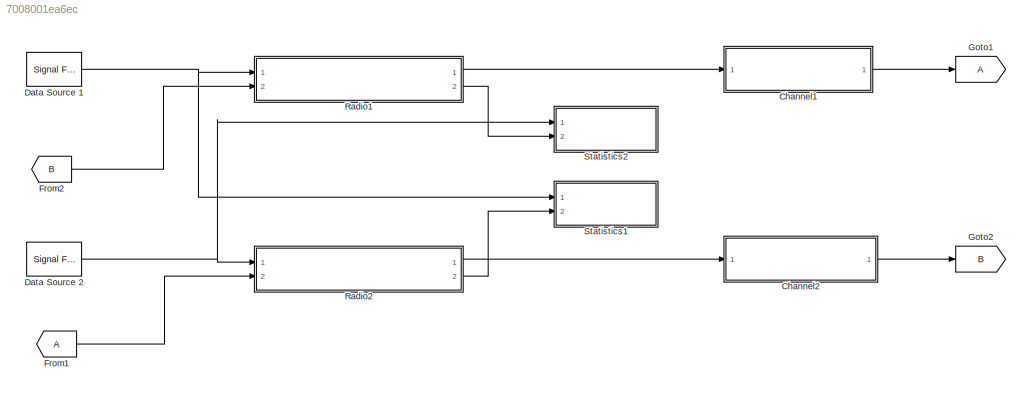
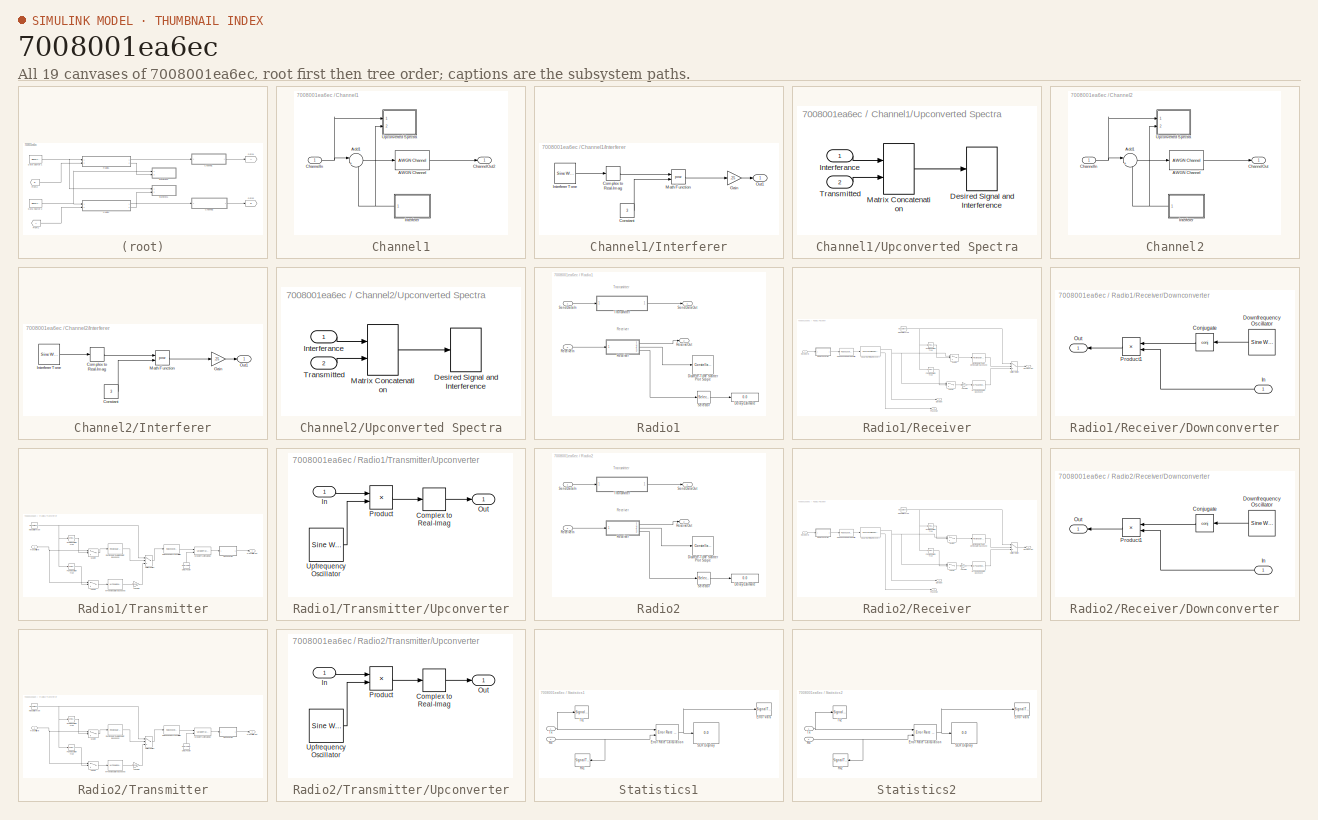
[diagram: thumbnail index - all 19 canvases of the model, root first then tree order]
MODEL slx_7008001ea6ec
KIND model
WORKSPACE source: MAT-file member
WORKSPACE MCOS: class17 (value not decoded)
WORKSPACE MCOS: class17 (value not decoded)
BLOCK [SubSystem] Channel1
  FunctionWithSeparateData = off
  MaskHideContents = off
  MinAlgLoopOccurrences = off
  Opaque = off
  Ports = [1, 1]
  PropExecContextOutsideSubsystem = off
  RTWFcnNameOpts = Use subsystem name
  RTWFileNameOpts = Use function name
  RTWSystemCode = Reusable function
  RequestExecContextInheritance = off
  TreatAsAtomicUnit = on
BLOCK [Reference] Channel1/AWGN Channel  REF=commchan3/AWGN
Channel
  EbNodB = 10
  EsNodB = 10
  InputProcessing = Columns as channels (frame based)
  Ports = [1, 1]
  Ps = InputSignalPower
  SNRdB = SNR
  SourceBlock = commchan3/AWGN\nChannel
  SourceType = AWGN Channel
  Tsym = 1
  UserDataPersistent = on
  bitsPerSym = 1
  noiseMode = Signal to noise ratio  (SNR)
  seed = 67
  variance = 1
BLOCK [Sum] Channel1/Add1
  IconShape = round
  InputSameDT = off
  Inputs = |++
  OutDataTypeStr = Inherit: Inherit via internal rule
  Ports = [2, 1]
  SaturateOnIntegerOverflow = off
BLOCK [Inport] Channel1/ChannelIn
  IconDisplay = Port number
BLOCK [Outport] Channel1/ChannelOut2
  IconDisplay = Port number
BLOCK [SubSystem] Channel1/Interferer
  FunctionWithSeparateData = off
  MaskHideContents = off
  MinAlgLoopOccurrences = off
  Opaque = off
  Ports = [0, 1]
  PropExecContextOutsideSubsystem = off
  RTWSystemCode = Auto
  RequestExecContextInheritance = off
BLOCK [ComplexToRealImag] Channel1/Interferer/Complex to Real-Imag
  Output = Real
  Ports = [1, 1]
BLOCK [Constant] Channel1/Interferer/Constant
  Value = 3
BLOCK [Gain] Channel1/Interferer/Gain
  Gain = .25
  OutDataTypeStr = Inherit: Inherit via internal rule
  ParamDataTypeStr = Inherit: Inherit via internal rule
  SaturateOnIntegerOverflow = off
BLOCK [Reference] Channel1/Interferer/Interferer Tone   REF=dspsrcs4/Sine Wave
  Amplitude = 1
  CompMethod = Trigonometric fcn
  Frequency = InterferanceFrequency
  LastOutDataTypeStr = double
  OutComplex = Complex
  OutDataTypeStr = double
  Phase = 0
  Ports = [0, 1]
  ResetState = Restart at time zero
  SampleMode = Discrete
  SampleTime = SampleTime/8
  SamplesPerFrame = SamplesPerFrame * 8
  SourceBlock = dspsrcs4/Sine Wave
  SourceType = Sine Wave
  TableSize = Speed
  additionalParams = off
  allowOverrides = on
  dataType = double
  fracBitsMode = Best precision
  numFracBits = 15
  udDataType = sfix(16)
  wordLen = 16
BLOCK [Math] Channel1/Interferer/Math Function
  Operator = pow
  Ports = [2, 1]
BLOCK [Outport] Channel1/Interferer/Out1
  IconDisplay = Port number
BLOCK [SubSystem] Channel1/Upconverted Spectra
  FunctionWithSeparateData = off
  MaskHideContents = off
  MinAlgLoopOccurrences = off
  Opaque = off
  Ports = [2]
  PropExecContextOutsideSubsystem = off
  RTWSystemCode = Auto
  RequestExecContextInheritance = off
BLOCK [SpectrumAnalyzer] Channel1/Upconverted Spectra/Desired Signal and Interference
  CloseFcn = scopeextensions.ScopeBlock.callback(gcbh, 'onBlockClose');
  CopyFcn = scopeextensions.ScopeBlock.onCoreBlockCopy(gcbh);
  DeleteFcn = scopeextensions.ScopeBlock.callback(gcbh, 'onBlockDelete');
  DestroyFcn = scopeextensions.ScopeBlock.onBlockDestroy(gcbh)
  NameChangeFcn = scopeextensions.ScopeBlock.callback(gcbh, 'onBlockRename');
  Ports = [1]
  PreDeleteFcn = scopeextensions.ScopeBlock.callback(gcbh, 'onBlockPreDelete');
  PreSaveFcn = scopeextensions.ScopeBlock.callback(gcbh, 'onModelSave');
BLOCK [Inport] Channel1/Upconverted Spectra/Interferance
  IconDisplay = Port number
BLOCK [Concatenate] Channel1/Upconverted Spectra/Matrix Concatenation
  ConcatenateDimension = 2
  Mode = Multidimensional array
  Ports = [2, 1]
BLOCK [Inport] Channel1/Upconverted Spectra/Transmitted
  IconDisplay = Port number
  Port = 2
BLOCK [SubSystem] Channel2
  FunctionWithSeparateData = off
  MaskHideContents = off
  MinAlgLoopOccurrences = off
  Opaque = off
  Ports = [1, 1]
  PropExecContextOutsideSubsystem = off
  RTWFcnNameOpts = Use subsystem name
  RTWFileNameOpts = Use function name
  RTWSystemCode = Reusable function
  RequestExecContextInheritance = off
  TreatAsAtomicUnit = on
BLOCK [Reference] Channel2/AWGN Channel  REF=commchan3/AWGN
Channel
  EbNodB = 10
  EsNodB = 10
  InputProcessing = Columns as channels (frame based)
  Ports = [1, 1]
  Ps = InputSignalPower
  SNRdB = SNR
  SourceBlock = commchan3/AWGN\nChannel
  SourceType = AWGN Channel
  Tsym = 1
  UserDataPersistent = on
  bitsPerSym = 1
  noiseMode = Signal to noise ratio  (SNR)
  seed = 67
  variance = 1
BLOCK [Sum] Channel2/Add1
  IconShape = round
  InputSameDT = off
  Inputs = |++
  OutDataTypeStr = Inherit: Inherit via internal rule
  Ports = [2, 1]
  SaturateOnIntegerOverflow = off
BLOCK [Inport] Channel2/ChannelIn
  IconDisplay = Port number
BLOCK [Outport] Channel2/ChannelOut
  IconDisplay = Port number
BLOCK [SubSystem] Channel2/Interferer
  FunctionWithSeparateData = off
  MaskHideContents = off
  MinAlgLoopOccurrences = off
  Opaque = off
  Ports = [0, 1]
  PropExecContextOutsideSubsystem = off
  RTWSystemCode = Auto
  RequestExecContextInheritance = off
BLOCK [ComplexToRealImag] Channel2/Interferer/Complex to Real-Imag
  Output = Real
  Ports = [1, 1]
BLOCK [Constant] Channel2/Interferer/Constant
  Value = 3
BLOCK [Gain] Channel2/Interferer/Gain
  Gain = .25
  OutDataTypeStr = Inherit: Inherit via internal rule
  ParamDataTypeStr = Inherit: Inherit via internal rule
  SaturateOnIntegerOverflow = off
BLOCK [Reference] Channel2/Interferer/Interferer Tone   REF=dspsrcs4/Sine Wave
  Amplitude = 1
  CompMethod = Trigonometric fcn
  Frequency = InterferanceFrequency
  LastOutDataTypeStr = double
  OutComplex = Complex
  OutDataTypeStr = double
  Phase = 0
  Ports = [0, 1]
  ResetState = Restart at time zero
  SampleMode = Discrete
  SampleTime = SampleTime/8
  SamplesPerFrame = SamplesPerFrame * 8
  SourceBlock = dspsrcs4/Sine Wave
  SourceType = Sine Wave
  TableSize = Speed
  additionalParams = off
  allowOverrides = on
  dataType = double
  fracBitsMode = Best precision
  numFracBits = 15
  udDataType = sfix(16)
  wordLen = 16
BLOCK [Math] Channel2/Interferer/Math Function
  Operator = pow
  Ports = [2, 1]
BLOCK [Outport] Channel2/Interferer/Out1
  IconDisplay = Port number
BLOCK [SubSystem] Channel2/Upconverted Spectra
  FunctionWithSeparateData = off
  MaskHideContents = off
  MinAlgLoopOccurrences = off
  Opaque = off
  Ports = [2]
  PropExecContextOutsideSubsystem = off
  RTWSystemCode = Auto
  RequestExecContextInheritance = off
BLOCK [SpectrumAnalyzer] Channel2/Upconverted Spectra/Desired Signal and Interference
  CloseFcn = scopeextensions.ScopeBlock.callback(gcbh, 'onBlockClose');
  CopyFcn = scopeextensions.ScopeBlock.onCoreBlockCopy(gcbh);
  DeleteFcn = scopeextensions.ScopeBlock.callback(gcbh, 'onBlockDelete');
  DestroyFcn = scopeextensions.ScopeBlock.onBlockDestroy(gcbh)
  NameChangeFcn = scopeextensions.ScopeBlock.callback(gcbh, 'onBlockRename');
  Ports = [1]
  PreDeleteFcn = scopeextensions.ScopeBlock.callback(gcbh, 'onBlockPreDelete');
  PreSaveFcn = scopeextensions.ScopeBlock.callback(gcbh, 'onModelSave');
BLOCK [Inport] Channel2/Upconverted Spectra/Interferance
  IconDisplay = Port number
BLOCK [Concatenate] Channel2/Upconverted Spectra/Matrix Concatenation
  ConcatenateDimension = 2
  Mode = Multidimensional array
  Ports = [2, 1]
BLOCK [Inport] Channel2/Upconverted Spectra/Transmitted
  IconDisplay = Port number
  Port = 2
BLOCK [Reference] Data Source 1  REF=dspsrcs4/Signal From
Workspace
  OutputAfterFinalValue = Cyclic repetition
  Ports = [0, 1]
  SourceBlock = dspsrcs4/Signal From\nWorkspace
  SourceType = Signal From Workspace
  Ts = SampleTime
  X = data1
  ignoreOrWarnInputAndFrameLengths = on
  nsamps = SamplesPerFrame
BLOCK [Reference] Data Source 2  REF=dspsrcs4/Signal From
Workspace
  OutputAfterFinalValue = Cyclic repetition
  Ports = [0, 1]
  SourceBlock = dspsrcs4/Signal From\nWorkspace
  SourceType = Signal From Workspace
  Ts = SampleTime
  X = data2
  ignoreOrWarnInputAndFrameLengths = on
  nsamps = SamplesPerFrame
BLOCK [From] From1
BLOCK [From] From2
  GotoTag = B
BLOCK [Goto] Goto1
BLOCK [Goto] Goto2
  GotoTag = B
BLOCK [SubSystem] Radio1
  FunctionWithSeparateData = off
  MaskHideContents = off
  MinAlgLoopOccurrences = off
  Opaque = off
  Ports = [2, 2]
  PropExecContextOutsideSubsystem = off
  RTWSystemCode = Auto
  RequestExecContextInheritance = off
BLOCK [Display] Radio1/Delay Estimate
  Decimation = 1
  Ports = [1]
BLOCK [ConstellationDiagram] Radio1/Discrete-Time Scatter Plot Scope
  CloseFcn = scopeextensions.ScopeBlock.callback(gcbh, 'onBlockClose');
  CopyFcn = scopeextensions.ScopeBlock.onCoreBlockCopy(gcbh);
  DeleteFcn = scopeextensions.ScopeBlock.callback(gcbh, 'onBlockDelete');
  DestroyFcn = scopeextensions.ScopeBlock.onBlockDestroy(gcbh)
  Diagnostics = AllowInheritedTsInSrc
  NameChangeFcn = scopeextensions.ScopeBlock.callback(gcbh, 'onBlockRename');
  Ports = [1]
  PreDeleteFcn = scopeextensions.ScopeBlock.callback(gcbh, 'onBlockPreDelete');
  PreSaveFcn = scopeextensions.ScopeBlock.callback(gcbh, 'onModelSave');
  Tag = ScatterPlot
BLOCK [Inport] Radio1/ReceiveIn
  IconDisplay = Port number
  Port = 2
BLOCK [Outport] Radio1/ReceiveOut
  IconDisplay = Port number
  Port = 2
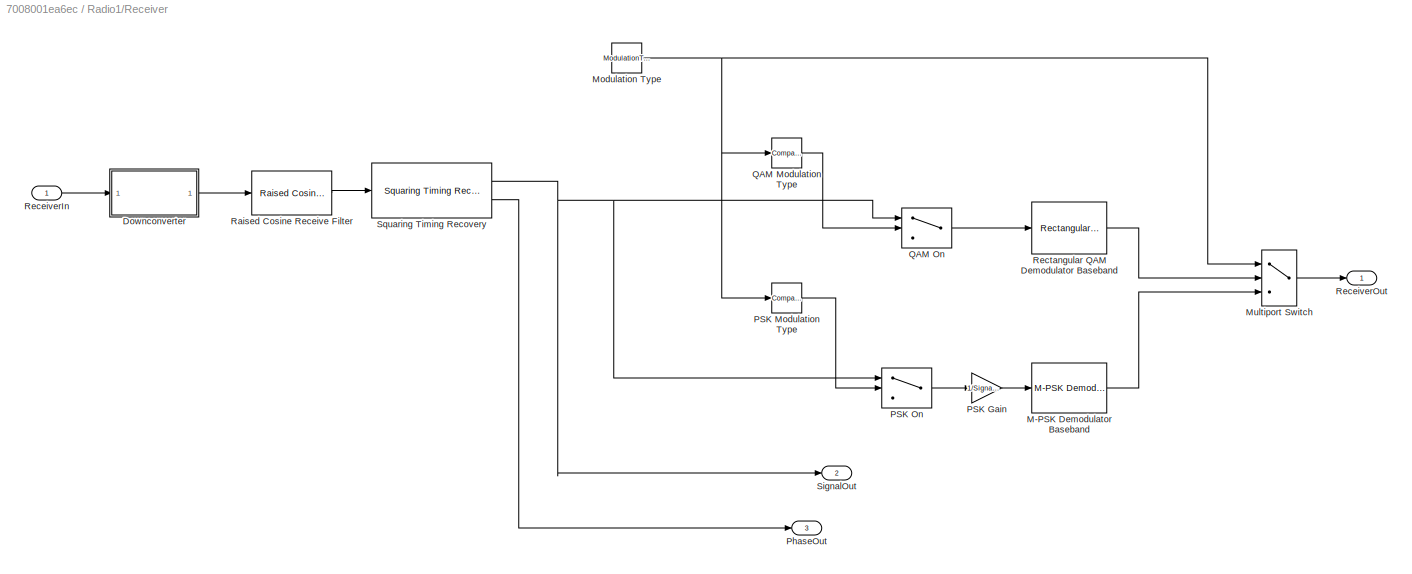
BLOCK [SubSystem] Radio1/Receiver
  FunctionWithSeparateData = off
  MaskHideContents = off
  MinAlgLoopOccurrences = off
  Opaque = off
  Ports = [1, 3]
  PropExecContextOutsideSubsystem = off
  RTWFcnNameOpts = Use subsystem name
  RTWFileNameOpts = Use function name
  RTWSystemCode = Reusable function
  RequestExecContextInheritance = off
  TreatAsAtomicUnit = on
BLOCK [SubSystem] Radio1/Receiver/Downconverter
  FunctionWithSeparateData = off
  MaskHideContents = off
  MinAlgLoopOccurrences = off
  Opaque = off
  Ports = [1, 1]
  PropExecContextOutsideSubsystem = off
  RTWSystemCode = Auto
  RequestExecContextInheritance = off
BLOCK [Math] Radio1/Receiver/Downconverter/Conjugate
  Operator = conj
  Ports = [1, 1]
BLOCK [Reference] Radio1/Receiver/Downconverter/Downfrequency Oscillator  REF=dspsrcs4/Sine Wave
  Amplitude = 1
  CompMethod = Trigonometric fcn
  Frequency = CarrierFrequency
  LastOutDataTypeStr = double
  OutComplex = Complex
  OutDataTypeStr = double
  Phase = 0
  Ports = [0, 1]
  ResetState = Restart at time zero
  SampleMode = Discrete
  SampleTime = SampleTime/8
  SamplesPerFrame = SamplesPerFrame * 8
  SourceBlock = dspsrcs4/Sine Wave
  SourceType = Sine Wave
  TableSize = Speed
  additionalParams = off
  allowOverrides = on
  dataType = double
  fracBitsMode = Best precision
  numFracBits = 15
  udDataType = sfix(16)
  wordLen = 16
BLOCK [Inport] Radio1/Receiver/Downconverter/In
  IconDisplay = Port number
BLOCK [Outport] Radio1/Receiver/Downconverter/Out
  IconDisplay = Port number
BLOCK [Product] Radio1/Receiver/Downconverter/Product1
  InputSameDT = off
  OutDataTypeStr = Inherit: Inherit via internal rule
  Ports = [2, 1]
  SaturateOnIntegerOverflow = off
BLOCK [Reference] Radio1/Receiver/M-PSK Demodulator Baseband  REF=commdigbbndpm3/M-PSK
Demodulator
Baseband
  Dec = Gray
  DecType = Hard decision
  M = M_ary
  Mapping = [0:7]
  OutType = Integer
  Ph = pi/M_ary
  Ports = [1, 1]
  SourceBlock = commdigbbndpm3/M-PSK\nDemodulator\nBaseband
  SourceType = M-PSK Demodulator Baseband
  VarSource = Dialog
  Variance = 1
  derotateFactorDTMode = Same word length as input
  derotateFactorWordLen = 16
  outDtype1 = Inherit via internal rule
  outDtype2 = uint8
BLOCK [Constant] Radio1/Receiver/Modulation Type
  Value = ModulationType
BLOCK [MultiPortSwitch] Radio1/Receiver/Multiport Switch
  DataPortOrder = Zero-based contiguous
  InputSameDT = off
  Inputs = 2
  Ports = [3, 1]
  SaturateOnIntegerOverflow = off
BLOCK [Gain] Radio1/Receiver/PSK Gain
  Gain = 1/SignalPower
  OutDataTypeStr = Inherit: Inherit via internal rule
  ParamDataTypeStr = Inherit: Inherit via internal rule
  SaturateOnIntegerOverflow = off
BLOCK [Reference] Radio1/Receiver/PSK Modulation Type  REF=simulink/Logic and Bit
Operations/Compare
To Constant
  OutDataTypeStr = uint8
  Ports = [1, 1]
  SourceBlock = simulink/Logic and Bit\nOperations/Compare\nTo Constant
  SourceType = Compare To Constant
  ZeroCross = on
  const = 1
  relop = ==
BLOCK [Switch] Radio1/Receiver/PSK On
  Criteria = u2 > Threshold
  InputSameDT = off
  SaturateOnIntegerOverflow = off
BLOCK [Outport] Radio1/Receiver/PhaseOut
  IconDisplay = Port number
  Port = 3
BLOCK [Reference] Radio1/Receiver/QAM Modulation Type  REF=simulink/Logic and Bit
Operations/Compare
To Constant
  OutDataTypeStr = uint8
  Ports = [1, 1]
  SourceBlock = simulink/Logic and Bit\nOperations/Compare\nTo Constant
  SourceType = Compare To Constant
  ZeroCross = on
  const = 0
  relop = ==
BLOCK [Switch] Radio1/Receiver/QAM On
  Criteria = u2 > Threshold
  InputSameDT = off
  SaturateOnIntegerOverflow = off
BLOCK [Reference] Radio1/Receiver/Raised Cosine Receive Filter  REF=commfilt2/Raised Cosine
Receive Filter
  D = 4
  InputProcessing = Columns as channels (frame based)
  LockScale = off
  N = 8
  Ports = [1, 1]
  R = 0.2
  SourceBlock = commfilt2/Raised Cosine\nReceive Filter
  SourceType = Raised Cosine Receive Filter
  UserDataPersistent = on
  accumFracLength = 30
  accumMode = Same as product output
  accumWordLength = 32
  checkCoeff = off
  checkGain = Normalized
  coeffFracLength = 15
  coeffMode = Same word length as input
  coeffWordLength = 16
  currentFiltSpan = 2*(4)
  downFactor = 1
  downOffset = 0
  filtSpan = 2*(4)
  filtType = Square root
  filterGain = rcfiltgaincompat(gcbh)
  framing = Maintain input frame rate
  launchFVT = off
  outputFracLength = 15
  outputMode = Same as accumulator
  outputWordLength = 16
  overflowMode = off
  prodOutputFracLength = 30
  prodOutputMode = Same as input
  prodOutputWordLength = 32
  rateMode = Downsampling
  roundingMode = Floor
  sampMode = Mute
  saveAsFlag = 0
  variableName = rcRxFilt
BLOCK [Inport] Radio1/Receiver/ReceiverIn
  IconDisplay = Port number
BLOCK [Outport] Radio1/Receiver/ReceiverOut
  IconDisplay = Port number
BLOCK [Reference] Radio1/Receiver/Rectangular QAM Demodulator Baseband  REF=commdigbbndam3/Rectangular QAM
Demodulator
Baseband
  AvgPow = 1
  Dec = Binary
  DecType = Hard decision
  M = M_ary
  Mapping = [0:15]
  MinDist = SignalPower
  OutType = Integer
  PeakPow = 1
  Ph = SymbolPhaseOffset
  Ports = [1, 1]
  PowType = Min. distance between symbols
  SourceBlock = commdigbbndam3/Rectangular QAM\nDemodulator\nBaseband
  SourceType = Rectangular QAM Demodulator Baseband
  VarSource = Dialog
  Variance = 1
  denormFactorDTMode = Same word length as input
  denormFactorWordLen = 16
  derotateFactorDTMode = Same word length as input
  derotateFactorWordLen = 16
  outDtype1 = double
  outDtype2 = uint8
  prodOutDTMode = Inherit via internal rule
  prodOutOverflowMode = Wrap
  prodOutRoundingMode = Floor
  prodOutWordLen = 32
  sumDTMode = Inherit via internal rule
  sumWordLen = 32
BLOCK [Outport] Radio1/Receiver/SignalOut
  IconDisplay = Port number
  Port = 2
BLOCK [Reference] Radio1/Receiver/Squaring Timing Recovery  REF=commtimrec2/Squaring
Timing Recovery
  Ports = [1, 2]
  SourceBlock = commtimrec2/Squaring\nTiming Recovery
  SourceType = Squaring Timing Recovery
  numSymb = SamplesPerFrame
  sampPerSymb = 8
BLOCK [Selector] Radio1/Selector
  IndexOptions = Index vector (dialog)
  Indices = 1
  InputPortWidth = SamplesPerFrame
  OutputSizes = 1
  Ports = [1, 1]
BLOCK [Inport] Radio1/SendDataIn
  IconDisplay = Port number
BLOCK [Outport] Radio1/SendDataOut
  IconDisplay = Port number
BLOCK [SubSystem] Radio1/Transmitter
  FunctionWithSeparateData = off
  MaskHideContents = off
  MinAlgLoopOccurrences = off
  Opaque = off
  Ports = [1, 1]
  PropExecContextOutsideSubsystem = off
  RTWFcnNameOpts = Use subsystem name
  RTWFileNameOpts = Use function name
  RTWSystemCode = Reusable function
  RequestExecContextInheritance = off
  TreatAsAtomicUnit = on
BLOCK [Constant] Radio1/Transmitter/Delay Factor
  Value = DelayParam
BLOCK [Reference] Radio1/Transmitter/M-PSK Modulator Baseband  REF=commdigbbndpm3/M-PSK
Modulator
Baseband
  Enc = Gray
  InType = Integer
  M = M_ary
  Mapping = [0:7]
  Ph = pi/M_ary
  Ports = [1, 1]
  SourceBlock = commdigbbndpm3/M-PSK\nModulator\nBaseband
  SourceType = M-PSK Modulator Baseband
  outDtype = double
  outFracLen = 15
  outFracLenMode = Best precision
  outUDDataType = sfix(16)
  outWordLen = 16
BLOCK [Constant] Radio1/Transmitter/Modulation Type
  Value = ModulationType
BLOCK [MultiPortSwitch] Radio1/Transmitter/Multiport Switch
  DataPortOrder = Zero-based contiguous
  InputSameDT = off
  Inputs = 2
  Ports = [3, 1]
  SaturateOnIntegerOverflow = off
BLOCK [Gain] Radio1/Transmitter/PSK Gain
  Gain = SignalPower
  OutDataTypeStr = Inherit: Inherit via internal rule
  ParamDataTypeStr = Inherit: Inherit via internal rule
  SaturateOnIntegerOverflow = off
BLOCK [Reference] Radio1/Transmitter/PSK Modulation Type  REF=simulink/Logic and Bit
Operations/Compare
To Constant
  OutDataTypeStr = uint8
  Ports = [1, 1]
  SourceBlock = simulink/Logic and Bit\nOperations/Compare\nTo Constant
  SourceType = Compare To Constant
  ZeroCross = on
  const = 1
  relop = ==
BLOCK [Switch] Radio1/Transmitter/PSK On
  Criteria = u2 > Threshold
  InputSameDT = off
  SaturateOnIntegerOverflow = off
BLOCK [Reference] Radio1/Transmitter/QAM Modulation Type  REF=simulink/Logic and Bit
Operations/Compare
To Constant
  OutDataTypeStr = uint8
  Ports = [1, 1]
  SourceBlock = simulink/Logic and Bit\nOperations/Compare\nTo Constant
  SourceType = Compare To Constant
  ZeroCross = on
  const = 0
  relop = ==
BLOCK [Switch] Radio1/Transmitter/QAM On
  Criteria = u2 > Threshold
  InputSameDT = off
  SaturateOnIntegerOverflow = off
BLOCK [Reference] Radio1/Transmitter/Raised Cosine Transmit Filter  REF=commfilt2/Raised Cosine
Transmit Filter
  D = (2*(4))/2
  InputProcessing = Columns as channels (frame based)
  LockScale = off
  N = 8
  Ports = [1, 1]
  R = 0.2
  SourceBlock = commfilt2/Raised Cosine\nTransmit Filter
  SourceType = Raised Cosine Transmit Filter
  UserDataPersistent = on
  accumFracLength = 30
  accumMode = Inherit via internal rule
  accumWordLength = 32
  checkCoeff = off
  checkGain = Normalized
  coeffFracLength = 15
  coeffMode = Same word length as input
  coeffWordLength = 16
  currentFiltSpan = 2*(4)
  filtSpan = 2*(4)
  filtType = Square root
  filterGain = rcfiltgaincompat(gcbh)
  framing = Enforce single-rate processing
  launchFVT = off
  outputFracLength = 15
  outputMode = Same as accumulator
  outputWordLength = 16
  overflowMode = off
  prodOutputFracLength = 30
  prodOutputMode = Inherit via internal rule
  prodOutputWordLength = 32
  roundingMode = Floor
  sampMode = Mute
  saveAsFlag = 0
  variableName = rcTxFilt
BLOCK [Reference] Radio1/Transmitter/Rectangular QAM Modulator Baseband  REF=commdigbbndam3/Rectangular QAM
Modulator
Baseband
  AvgPow = 1
  Enc = Binary
  InType = Integer
  M = M_ary
  Mapping = [0:15]
  MinDist = SignalPower
  PeakPow = 1
  Ph = SymbolPhaseOffset
  Ports = [1, 1]
  PowType = Min. distance between symbols
  SourceBlock = commdigbbndam3/Rectangular QAM\nModulator\nBaseband
  SourceType = Rectangular QAM Modulator Baseband
  outDtype = double
  outFracLen = 15
  outFracLenMode = Best precision
  outUDDataType = sfix(16)
  outWordLen = 16
BLOCK [Inport] Radio1/Transmitter/TransmitterIn
  IconDisplay = Port number
BLOCK [Outport] Radio1/Transmitter/TransmitterOut
  IconDisplay = Port number
BLOCK [SubSystem] Radio1/Transmitter/Upconverter
  FunctionWithSeparateData = off
  MaskHideContents = off
  MinAlgLoopOccurrences = off
  Opaque = off
  Ports = [1, 1]
  PropExecContextOutsideSubsystem = off
  RTWSystemCode = Auto
  RequestExecContextInheritance = off
BLOCK [ComplexToRealImag] Radio1/Transmitter/Upconverter/Complex to Real-Imag
  Output = Real
  Ports = [1, 1]
BLOCK [Inport] Radio1/Transmitter/Upconverter/In
  IconDisplay = Port number
BLOCK [Outport] Radio1/Transmitter/Upconverter/Out
  IconDisplay = Port number
BLOCK [Product] Radio1/Transmitter/Upconverter/Product
  InputSameDT = off
  OutDataTypeStr = Inherit: Inherit via internal rule
  Ports = [2, 1]
  SaturateOnIntegerOverflow = off
BLOCK [Reference] Radio1/Transmitter/Upconverter/Upfrequency Oscillator  REF=dspsrcs4/Sine Wave
  Amplitude = 2
  CompMethod = Trigonometric fcn
  Frequency = CarrierFrequency
  LastOutDataTypeStr = double
  OutComplex = Complex
  OutDataTypeStr = double
  Phase = 0
  Ports = [0, 1]
  ResetState = Restart at time zero
  SampleMode = Discrete
  SampleTime = SampleTime/8
  SamplesPerFrame = SamplesPerFrame * 8
  SourceBlock = dspsrcs4/Sine Wave
  SourceType = Sine Wave
  TableSize = Speed
  additionalParams = off
  allowOverrides = on
  dataType = double
  fracBitsMode = Best precision
  numFracBits = 15
  udDataType = sfix(16)
  wordLen = 16
BLOCK [Reference] Radio1/Transmitter/Variable Fractional Delay  REF=dspsigops/Variable
Fractional Delay
  FarrowL = 4
  InputProcessing = Columns as channels (frame based)
  L = 4
  LockScale = off
  Ports = [2, 1]
  R = 10
  SourceBlock = dspsigops/Variable\nFractional Delay
  SourceType = Variable Fractional Delay
  UserDataPersistent = on
  accumFracLength = 10
  accumMode = Same as product output
  accumWordLength = 32
  alpha = 1
  dmax = 4
  fallbackFIR = Clip to the minimum value necessary for centered kernel
  fallbackFarrow = Clip to the minimum value necessary for centered kernel
  firstCoeffFracLength = 0
  firstCoeffMode = Same word length as input
  firstCoeffWordLength = 32
  ic = 0
  interProdFracLength = 10
  interProdMode = Same as first input
  interProdWordLength = 32
  memoryFracLength = 10
  memoryMode = Same as first input
  memoryWordLength = 32
  mode = OBSOLETE
  modeActive = Linear
  noDFT = off
  outputFracLength = 10
  outputMode = Same as accumulator
  outputWordLength = 32
  overflowMode = off
  prodOutputFracLength = 10
  prodOutputMode = Same as first input
  prodOutputWordLength = 32
  roundingMode = Zero
  secondCoeffFracLength = 10
  secondCoeffMode = Same as first input
  secondCoeffWordLength = 32
BLOCK [SubSystem] Radio2
  FunctionWithSeparateData = off
  MaskHideContents = off
  MinAlgLoopOccurrences = off
  Opaque = off
  Ports = [2, 2]
  PropExecContextOutsideSubsystem = off
  RTWSystemCode = Auto
  RequestExecContextInheritance = off
BLOCK [Display] Radio2/Delay Estimate
  Decimation = 1
  Ports = [1]
BLOCK [ConstellationDiagram] Radio2/Discrete-Time Scatter Plot Scope
  CloseFcn = scopeextensions.ScopeBlock.callback(gcbh, 'onBlockClose');
  CopyFcn = scopeextensions.ScopeBlock.onCoreBlockCopy(gcbh);
  DeleteFcn = scopeextensions.ScopeBlock.callback(gcbh, 'onBlockDelete');
  DestroyFcn = scopeextensions.ScopeBlock.onBlockDestroy(gcbh)
  Diagnostics = AllowInheritedTsInSrc
  NameChangeFcn = scopeextensions.ScopeBlock.callback(gcbh, 'onBlockRename');
  Ports = [1]
  PreDeleteFcn = scopeextensions.ScopeBlock.callback(gcbh, 'onBlockPreDelete');
  PreSaveFcn = scopeextensions.ScopeBlock.callback(gcbh, 'onModelSave');
  Tag = ScatterPlot
BLOCK [Inport] Radio2/ReceiveIn
  IconDisplay = Port number
  Port = 2
BLOCK [Outport] Radio2/ReceiveOut
  IconDisplay = Port number
  Port = 2
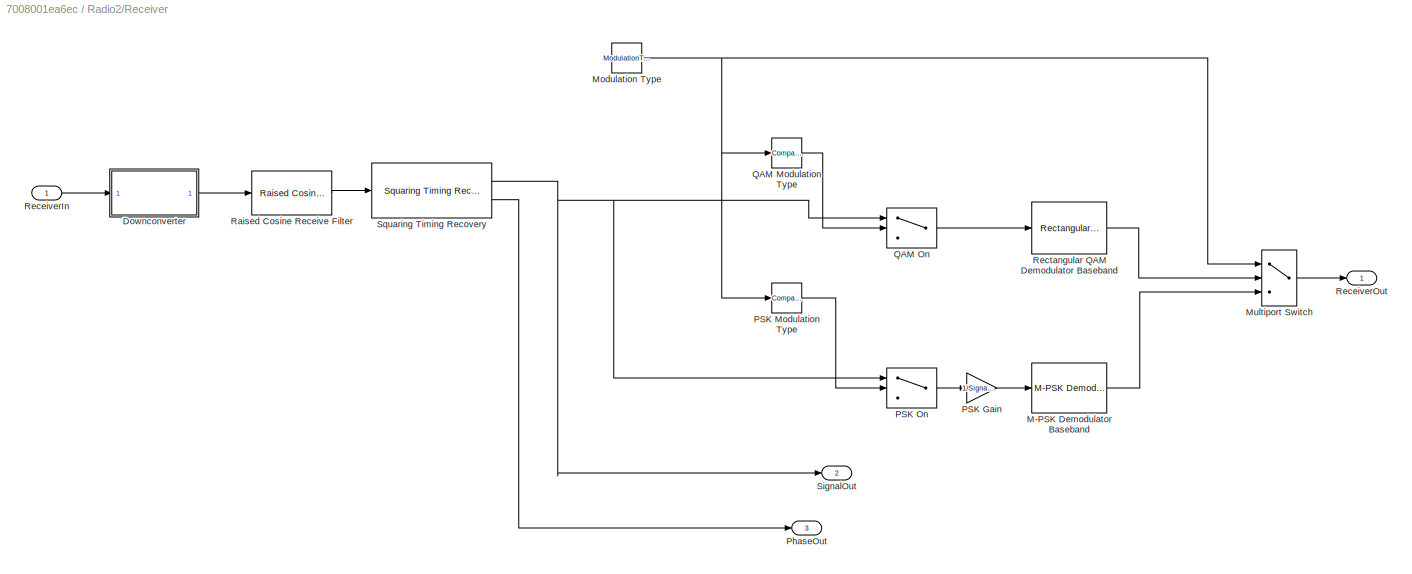
BLOCK [SubSystem] Radio2/Receiver
  FunctionWithSeparateData = off
  MaskHideContents = off
  MinAlgLoopOccurrences = off
  Opaque = off
  Ports = [1, 3]
  PropExecContextOutsideSubsystem = off
  RTWFcnNameOpts = Use subsystem name
  RTWFileNameOpts = Use function name
  RTWSystemCode = Reusable function
  RequestExecContextInheritance = off
  TreatAsAtomicUnit = on
BLOCK [SubSystem] Radio2/Receiver/Downconverter
  FunctionWithSeparateData = off
  MaskHideContents = off
  MinAlgLoopOccurrences = off
  Opaque = off
  Ports = [1, 1]
  PropExecContextOutsideSubsystem = off
  RTWSystemCode = Auto
  RequestExecContextInheritance = off
BLOCK [Math] Radio2/Receiver/Downconverter/Conjugate
  Operator = conj
  Ports = [1, 1]
BLOCK [Reference] Radio2/Receiver/Downconverter/Downfrequency Oscillator  REF=dspsrcs4/Sine Wave
  Amplitude = 1
  CompMethod = Trigonometric fcn
  Frequency = CarrierFrequency
  LastOutDataTypeStr = double
  OutComplex = Complex
  OutDataTypeStr = double
  Phase = 0
  Ports = [0, 1]
  ResetState = Restart at time zero
  SampleMode = Discrete
  SampleTime = SampleTime/8
  SamplesPerFrame = SamplesPerFrame * 8
  SourceBlock = dspsrcs4/Sine Wave
  SourceType = Sine Wave
  TableSize = Speed
  additionalParams = off
  allowOverrides = on
  dataType = double
  fracBitsMode = Best precision
  numFracBits = 15
  udDataType = sfix(16)
  wordLen = 16
BLOCK [Inport] Radio2/Receiver/Downconverter/In
  IconDisplay = Port number
BLOCK [Outport] Radio2/Receiver/Downconverter/Out
  IconDisplay = Port number
BLOCK [Product] Radio2/Receiver/Downconverter/Product1
  InputSameDT = off
  OutDataTypeStr = Inherit: Inherit via internal rule
  Ports = [2, 1]
  SaturateOnIntegerOverflow = off
BLOCK [Reference] Radio2/Receiver/M-PSK Demodulator Baseband  REF=commdigbbndpm3/M-PSK
Demodulator
Baseband
  Dec = Gray
  DecType = Hard decision
  M = M_ary
  Mapping = [0:7]
  OutType = Integer
  Ph = pi/M_ary
  Ports = [1, 1]
  SourceBlock = commdigbbndpm3/M-PSK\nDemodulator\nBaseband
  SourceType = M-PSK Demodulator Baseband
  VarSource = Dialog
  Variance = 1
  derotateFactorDTMode = Same word length as input
  derotateFactorWordLen = 16
  outDtype1 = Inherit via internal rule
  outDtype2 = uint8
BLOCK [Constant] Radio2/Receiver/Modulation Type
  Value = ModulationType
BLOCK [MultiPortSwitch] Radio2/Receiver/Multiport Switch
  DataPortOrder = Zero-based contiguous
  InputSameDT = off
  Inputs = 2
  Ports = [3, 1]
  SaturateOnIntegerOverflow = off
BLOCK [Gain] Radio2/Receiver/PSK Gain
  Gain = 1/SignalPower
  OutDataTypeStr = Inherit: Inherit via internal rule
  ParamDataTypeStr = Inherit: Inherit via internal rule
  SaturateOnIntegerOverflow = off
BLOCK [Reference] Radio2/Receiver/PSK Modulation Type  REF=simulink/Logic and Bit
Operations/Compare
To Constant
  OutDataTypeStr = uint8
  Ports = [1, 1]
  SourceBlock = simulink/Logic and Bit\nOperations/Compare\nTo Constant
  SourceType = Compare To Constant
  ZeroCross = on
  const = 1
  relop = ==
BLOCK [Switch] Radio2/Receiver/PSK On
  Criteria = u2 > Threshold
  InputSameDT = off
  SaturateOnIntegerOverflow = off
BLOCK [Outport] Radio2/Receiver/PhaseOut
  IconDisplay = Port number
  Port = 3
BLOCK [Reference] Radio2/Receiver/QAM Modulation Type  REF=simulink/Logic and Bit
Operations/Compare
To Constant
  OutDataTypeStr = uint8
  Ports = [1, 1]
  SourceBlock = simulink/Logic and Bit\nOperations/Compare\nTo Constant
  SourceType = Compare To Constant
  ZeroCross = on
  const = 0
  relop = ==
BLOCK [Switch] Radio2/Receiver/QAM On
  Criteria = u2 > Threshold
  InputSameDT = off
  SaturateOnIntegerOverflow = off
BLOCK [Reference] Radio2/Receiver/Raised Cosine Receive Filter  REF=commfilt2/Raised Cosine
Receive Filter
  D = 4
  InputProcessing = Columns as channels (frame based)
  LockScale = off
  N = 8
  Ports = [1, 1]
  R = 0.2
  SourceBlock = commfilt2/Raised Cosine\nReceive Filter
  SourceType = Raised Cosine Receive Filter
  UserDataPersistent = on
  accumFracLength = 30
  accumMode = Same as product output
  accumWordLength = 32
  checkCoeff = off
  checkGain = Normalized
  coeffFracLength = 15
  coeffMode = Same word length as input
  coeffWordLength = 16
  currentFiltSpan = 2*(4)
  downFactor = 1
  downOffset = 0
  filtSpan = 2*(4)
  filtType = Square root
  filterGain = rcfiltgaincompat(gcbh)
  framing = Maintain input frame rate
  launchFVT = off
  outputFracLength = 15
  outputMode = Same as accumulator
  outputWordLength = 16
  overflowMode = off
  prodOutputFracLength = 30
  prodOutputMode = Same as input
  prodOutputWordLength = 32
  rateMode = Downsampling
  roundingMode = Floor
  sampMode = Mute
  saveAsFlag = 0
  variableName = rcRxFilt
BLOCK [Inport] Radio2/Receiver/ReceiverIn
  IconDisplay = Port number
BLOCK [Outport] Radio2/Receiver/ReceiverOut
  IconDisplay = Port number
BLOCK [Reference] Radio2/Receiver/Rectangular QAM Demodulator Baseband  REF=commdigbbndam3/Rectangular QAM
Demodulator
Baseband
  AvgPow = 1
  Dec = Binary
  DecType = Hard decision
  M = M_ary
  Mapping = [0:15]
  MinDist = SignalPower
  OutType = Integer
  PeakPow = 1
  Ph = SymbolPhaseOffset
  Ports = [1, 1]
  PowType = Min. distance between symbols
  SourceBlock = commdigbbndam3/Rectangular QAM\nDemodulator\nBaseband
  SourceType = Rectangular QAM Demodulator Baseband
  VarSource = Dialog
  Variance = 1
  denormFactorDTMode = Same word length as input
  denormFactorWordLen = 16
  derotateFactorDTMode = Same word length as input
  derotateFactorWordLen = 16
  outDtype1 = double
  outDtype2 = uint8
  prodOutDTMode = Inherit via internal rule
  prodOutOverflowMode = Wrap
  prodOutRoundingMode = Floor
  prodOutWordLen = 32
  sumDTMode = Inherit via internal rule
  sumWordLen = 32
BLOCK [Outport] Radio2/Receiver/SignalOut
  IconDisplay = Port number
  Port = 2
BLOCK [Reference] Radio2/Receiver/Squaring Timing Recovery  REF=commtimrec2/Squaring
Timing Recovery
  Ports = [1, 2]
  SourceBlock = commtimrec2/Squaring\nTiming Recovery
  SourceType = Squaring Timing Recovery
  numSymb = SamplesPerFrame
  sampPerSymb = 8
BLOCK [Selector] Radio2/Selector
  IndexOptions = Index vector (dialog)
  Indices = 1
  InputPortWidth = SamplesPerFrame
  OutputSizes = 1
  Ports = [1, 1]
BLOCK [Inport] Radio2/SendDataIn
  IconDisplay = Port number
BLOCK [Outport] Radio2/SendDataOut
  IconDisplay = Port number
BLOCK [SubSystem] Radio2/Transmitter
  FunctionWithSeparateData = off
  MaskHideContents = off
  MinAlgLoopOccurrences = off
  Opaque = off
  Ports = [1, 1]
  PropExecContextOutsideSubsystem = off
  RTWFcnNameOpts = Use subsystem name
  RTWFileNameOpts = Use function name
  RTWSystemCode = Reusable function
  RequestExecContextInheritance = off
  TreatAsAtomicUnit = on
BLOCK [Constant] Radio2/Transmitter/Delay Factor
  Value = DelayParam
BLOCK [Reference] Radio2/Transmitter/M-PSK Modulator Baseband  REF=commdigbbndpm3/M-PSK
Modulator
Baseband
  Enc = Gray
  InType = Integer
  M = M_ary
  Mapping = [0:7]
  Ph = pi/M_ary
  Ports = [1, 1]
  SourceBlock = commdigbbndpm3/M-PSK\nModulator\nBaseband
  SourceType = M-PSK Modulator Baseband
  outDtype = double
  outFracLen = 15
  outFracLenMode = Best precision
  outUDDataType = sfix(16)
  outWordLen = 16
BLOCK [Constant] Radio2/Transmitter/Modulation Type
  Value = ModulationType
BLOCK [MultiPortSwitch] Radio2/Transmitter/Multiport Switch
  DataPortOrder = Zero-based contiguous
  InputSameDT = off
  Inputs = 2
  Ports = [3, 1]
  SaturateOnIntegerOverflow = off
BLOCK [Gain] Radio2/Transmitter/PSK Gain
  Gain = SignalPower
  OutDataTypeStr = Inherit: Inherit via internal rule
  ParamDataTypeStr = Inherit: Inherit via internal rule
  SaturateOnIntegerOverflow = off
BLOCK [Reference] Radio2/Transmitter/PSK Modulation Type  REF=simulink/Logic and Bit
Operations/Compare
To Constant
  OutDataTypeStr = uint8
  Ports = [1, 1]
  SourceBlock = simulink/Logic and Bit\nOperations/Compare\nTo Constant
  SourceType = Compare To Constant
  ZeroCross = on
  const = 1
  relop = ==
BLOCK [Switch] Radio2/Transmitter/PSK On
  Criteria = u2 > Threshold
  InputSameDT = off
  SaturateOnIntegerOverflow = off
BLOCK [Reference] Radio2/Transmitter/QAM Modulation Type  REF=simulink/Logic and Bit
Operations/Compare
To Constant
  OutDataTypeStr = uint8
  Ports = [1, 1]
  SourceBlock = simulink/Logic and Bit\nOperations/Compare\nTo Constant
  SourceType = Compare To Constant
  ZeroCross = on
  const = 0
  relop = ==
BLOCK [Switch] Radio2/Transmitter/QAM On
  Criteria = u2 > Threshold
  InputSameDT = off
  SaturateOnIntegerOverflow = off
BLOCK [Reference] Radio2/Transmitter/Raised Cosine Transmit Filter  REF=commfilt2/Raised Cosine
Transmit Filter
  D = 4
  InputProcessing = Columns as channels (frame based)
  LockScale = off
  N = 8
  Ports = [1, 1]
  R = 0.2
  SourceBlock = commfilt2/Raised Cosine\nTransmit Filter
  SourceType = Raised Cosine Transmit Filter
  UserDataPersistent = on
  accumFracLength = 30
  accumMode = Inherit via internal rule
  accumWordLength = 32
  checkCoeff = off
  checkGain = Normalized
  coeffFracLength = 15
  coeffMode = Same word length as input
  coeffWordLength = 16
  currentFiltSpan = 2*(4)
  filtSpan = 2*(4)
  filtType = Square root
  filterGain = rcfiltgaincompat(gcbh)
  framing = Enforce single-rate processing
  launchFVT = off
  outputFracLength = 15
  outputMode = Same as accumulator
  outputWordLength = 16
  overflowMode = off
  prodOutputFracLength = 30
  prodOutputMode = Inherit via internal rule
  prodOutputWordLength = 32
  roundingMode = Floor
  sampMode = Mute
  saveAsFlag = 0
  variableName = rcTxFilt
BLOCK [Reference] Radio2/Transmitter/Rectangular QAM Modulator Baseband  REF=commdigbbndam3/Rectangular QAM
Modulator
Baseband
  AvgPow = 1
  Enc = Binary
  InType = Integer
  M = M_ary
  Mapping = [0:15]
  MinDist = SignalPower
  PeakPow = 1
  Ph = SymbolPhaseOffset
  Ports = [1, 1]
  PowType = Min. distance between symbols
  SourceBlock = commdigbbndam3/Rectangular QAM\nModulator\nBaseband
  SourceType = Rectangular QAM Modulator Baseband
  outDtype = double
  outFracLen = 15
  outFracLenMode = Best precision
  outUDDataType = sfix(16)
  outWordLen = 16
BLOCK [Inport] Radio2/Transmitter/TransmitterIn
  IconDisplay = Port number
BLOCK [Outport] Radio2/Transmitter/TransmitterOut
  IconDisplay = Port number
BLOCK [SubSystem] Radio2/Transmitter/Upconverter
  FunctionWithSeparateData = off
  MaskHideContents = off
  MinAlgLoopOccurrences = off
  Opaque = off
  Ports = [1, 1]
  PropExecContextOutsideSubsystem = off
  RTWSystemCode = Auto
  RequestExecContextInheritance = off
BLOCK [ComplexToRealImag] Radio2/Transmitter/Upconverter/Complex to Real-Imag
  Output = Real
  Ports = [1, 1]
BLOCK [Inport] Radio2/Transmitter/Upconverter/In
  IconDisplay = Port number
BLOCK [Outport] Radio2/Transmitter/Upconverter/Out
  IconDisplay = Port number
BLOCK [Product] Radio2/Transmitter/Upconverter/Product
  InputSameDT = off
  OutDataTypeStr = Inherit: Inherit via internal rule
  Ports = [2, 1]
  SaturateOnIntegerOverflow = off
BLOCK [Reference] Radio2/Transmitter/Upconverter/Upfrequency Oscillator  REF=dspsrcs4/Sine Wave
  Amplitude = 2
  CompMethod = Trigonometric fcn
  Frequency = CarrierFrequency
  LastOutDataTypeStr = double
  OutComplex = Complex
  OutDataTypeStr = double
  Phase = 0
  Ports = [0, 1]
  ResetState = Restart at time zero
  SampleMode = Discrete
  SampleTime = SampleTime/8
  SamplesPerFrame = SamplesPerFrame * 8
  SourceBlock = dspsrcs4/Sine Wave
  SourceType = Sine Wave
  TableSize = Speed
  additionalParams = off
  allowOverrides = on
  dataType = double
  fracBitsMode = Best precision
  numFracBits = 15
  udDataType = sfix(16)
  wordLen = 16
BLOCK [Reference] Radio2/Transmitter/Variable Fractional Delay  REF=dspsigops/Variable
Fractional Delay
  FarrowL = 4
  InputProcessing = Columns as channels (frame based)
  L = 4
  LockScale = off
  Ports = [2, 1]
  R = 10
  SourceBlock = dspsigops/Variable\nFractional Delay
  SourceType = Variable Fractional Delay
  UserDataPersistent = on
  accumFracLength = 10
  accumMode = Same as product output
  accumWordLength = 32
  alpha = 1
  dmax = 4
  fallbackFIR = Clip to the minimum value necessary for centered kernel
  fallbackFarrow = Clip to the minimum value necessary for centered kernel
  firstCoeffFracLength = 0
  firstCoeffMode = Same word length as input
  firstCoeffWordLength = 32
  ic = 0
  interProdFracLength = 10
  interProdMode = Same as first input
  interProdWordLength = 32
  memoryFracLength = 10
  memoryMode = Same as first input
  memoryWordLength = 32
  mode = OBSOLETE
  modeActive = Linear
  noDFT = off
  outputFracLength = 10
  outputMode = Same as accumulator
  outputWordLength = 32
  overflowMode = off
  prodOutputFracLength = 10
  prodOutputMode = Same as first input
  prodOutputWordLength = 32
  roundingMode = Zero
  secondCoeffFracLength = 10
  secondCoeffMode = Same as first input
  secondCoeffWordLength = 32
BLOCK [SubSystem] Statistics1
  FunctionWithSeparateData = off
  MaskHideContents = off
  MinAlgLoopOccurrences = off
  Opaque = off
  Ports = [2]
  PropExecContextOutsideSubsystem = off
  RTWFcnNameOpts = Use subsystem name
  RTWFileNameOpts = Use function name
  RTWSystemCode = Reusable function
  RequestExecContextInheritance = off
  TreatAsAtomicUnit = on
BLOCK [Reference] Statistics1/Error Rate Calculation  REF=commsink2/Error Rate
Calculation
  N = 8
  PMode = Port
  Ports = [2, 1]
  RsMode2 = off
  SourceBlock = commsink2/Error Rate\nCalculation
  SourceType = Error Rate Calculation
  WsName = ErrorVec
  cp_mode = Entire frame
  maxBits = 1e6
  numErr = 100
  st_delay = 0
  stop = off
  subframe = []
BLOCK [SignalToWorkspace] Statistics1/Error Vars
  CopyFcn = dspblkcopystw(gcbh);
  MaxDataPoints = inf
  Ports = [1]
  VariableName = ErrorVars1
BLOCK [Inport] Statistics1/Rx
  IconDisplay = Port number
  Port = 2
BLOCK [SignalToWorkspace] Statistics1/Rx1
  CopyFcn = dspblkcopystw(gcbh);
  MaxDataPoints = inf
  Ports = [1]
  VariableName = Rx1
BLOCK [Display] Statistics1/SER Display
  Decimation = 1
  Ports = [1]
BLOCK [Inport] Statistics1/Tx
  IconDisplay = Port number
BLOCK [SignalToWorkspace] Statistics1/Tx1
  CopyFcn = dspblkcopystw(gcbh);
  MaxDataPoints = inf
  Ports = [1]
  VariableName = Tx1
BLOCK [SubSystem] Statistics2
  FunctionWithSeparateData = off
  MaskHideContents = off
  MinAlgLoopOccurrences = off
  Opaque = off
  Ports = [2]
  PropExecContextOutsideSubsystem = off
  RTWFcnNameOpts = Use subsystem name
  RTWFileNameOpts = Use function name
  RTWSystemCode = Reusable function
  RequestExecContextInheritance = off
  TreatAsAtomicUnit = on
BLOCK [Reference] Statistics2/Error Rate Calculation  REF=commsink2/Error Rate
Calculation
  N = 8
  PMode = Port
  Ports = [2, 1]
  RsMode2 = off
  SourceBlock = commsink2/Error Rate\nCalculation
  SourceType = Error Rate Calculation
  WsName = ErrorVec
  cp_mode = Entire frame
  maxBits = 1e6
  numErr = 100
  st_delay = 0
  stop = off
  subframe = []
BLOCK [SignalToWorkspace] Statistics2/Error Vars
  CopyFcn = dspblkcopystw(gcbh);
  MaxDataPoints = inf
  Ports = [1]
  VariableName = ErrorVars2
BLOCK [Inport] Statistics2/Rx
  IconDisplay = Port number
  Port = 2
BLOCK [SignalToWorkspace] Statistics2/Rx2
  CopyFcn = dspblkcopystw(gcbh);
  MaxDataPoints = inf
  Ports = [1]
  VariableName = Rx2
BLOCK [Display] Statistics2/SER Display
  Decimation = 1
  Ports = [1]
BLOCK [Inport] Statistics2/Tx
  IconDisplay = Port number
BLOCK [SignalToWorkspace] Statistics2/Tx2
  CopyFcn = dspblkcopystw(gcbh);
  MaxDataPoints = inf
  Ports = [1]
  VariableName = Tx2
ANNOTATION Radio1: Receiver
ANNOTATION Radio1: Transmitter
ANNOTATION Radio2: Receiver
ANNOTATION Radio2: Transmitter
LINE Channel1/AWGN Channel:1 -> Channel1/ChannelOut2:1
LINE Channel1/Add1:1 -> Channel1/AWGN Channel:1
NET Channel1/ChannelIn:1 -> Channel1/Add1:1, Channel1/Upconverted Spectra:1
LINE Channel1/Interferer/Complex to Real-Imag:1 -> Channel1/Interferer/Math Function:1
LINE Channel1/Interferer/Constant:1 -> Channel1/Interferer/Math Function:2
LINE Channel1/Interferer/Gain:1 -> Channel1/Interferer/Out1:1
LINE Channel1/Interferer/Interferer Tone :1 -> Channel1/Interferer/Complex to Real-Imag:1
LINE Channel1/Interferer/Math Function:1 -> Channel1/Interferer/Gain:1
NET Channel1/Interferer:1 -> Channel1/Add1:2, Channel1/Upconverted Spectra:2
LINE Channel1/Upconverted Spectra/Interferance:1 -> Channel1/Upconverted Spectra/Matrix Concatenation:1
LINE Channel1/Upconverted Spectra/Matrix Concatenation:1 -> Channel1/Upconverted Spectra/Desired Signal and Interference:1
LINE Channel1/Upconverted Spectra/Transmitted:1 -> Channel1/Upconverted Spectra/Matrix Concatenation:2
LINE Channel1:1 -> Goto1:1
LINE Channel2/AWGN Channel:1 -> Channel2/ChannelOut:1
LINE Channel2/Add1:1 -> Channel2/AWGN Channel:1
NET Channel2/ChannelIn:1 -> Channel2/Add1:1, Channel2/Upconverted Spectra:1
LINE Channel2/Interferer/Complex to Real-Imag:1 -> Channel2/Interferer/Math Function:1
LINE Channel2/Interferer/Constant:1 -> Channel2/Interferer/Math Function:2
LINE Channel2/Interferer/Gain:1 -> Channel2/Interferer/Out1:1
LINE Channel2/Interferer/Interferer Tone :1 -> Channel2/Interferer/Complex to Real-Imag:1
LINE Channel2/Interferer/Math Function:1 -> Channel2/Interferer/Gain:1
NET Channel2/Interferer:1 -> Channel2/Add1:2, Channel2/Upconverted Spectra:2
LINE Channel2/Upconverted Spectra/Interferance:1 -> Channel2/Upconverted Spectra/Matrix Concatenation:1
LINE Channel2/Upconverted Spectra/Matrix Concatenation:1 -> Channel2/Upconverted Spectra/Desired Signal and Interference:1
LINE Channel2/Upconverted Spectra/Transmitted:1 -> Channel2/Upconverted Spectra/Matrix Concatenation:2
LINE Channel2:1 -> Goto2:1
NET Data Source 1:1 -> Radio1:1, Statistics1:1
NET Data Source 2:1 -> Radio2:1, Statistics2:1
LINE From1:1 -> Radio2:2
LINE From2:1 -> Radio1:2
LINE Radio1/ReceiveIn:1 -> Radio1/Receiver:1
LINE Radio1/Receiver/Downconverter/Conjugate:1 -> Radio1/Receiver/Downconverter/Product1:1
LINE Radio1/Receiver/Downconverter/Downfrequency Oscillator:1 -> Radio1/Receiver/Downconverter/Conjugate:1
LINE Radio1/Receiver/Downconverter/In:1 -> Radio1/Receiver/Downconverter/Product1:2
LINE Radio1/Receiver/Downconverter/Product1:1 -> Radio1/Receiver/Downconverter/Out:1
LINE Radio1/Receiver/Downconverter:1 -> Radio1/Receiver/Raised Cosine Receive Filter:1
LINE Radio1/Receiver/M-PSK Demodulator Baseband:1 -> Radio1/Receiver/Multiport Switch:3
NET Radio1/Receiver/Modulation Type:1 -> Radio1/Receiver/Multiport Switch:1, Radio1/Receiver/PSK Modulation Type:1, Radio1/Receiver/QAM Modulation Type:1
LINE Radio1/Receiver/Multiport Switch:1 -> Radio1/Receiver/ReceiverOut:1
LINE Radio1/Receiver/PSK Gain:1 -> Radio1/Receiver/M-PSK Demodulator Baseband:1
LINE Radio1/Receiver/PSK Modulation Type:1 -> Radio1/Receiver/PSK On:2
LINE Radio1/Receiver/PSK On:1 -> Radio1/Receiver/PSK Gain:1
LINE Radio1/Receiver/QAM Modulation Type:1 -> Radio1/Receiver/QAM On:2
LINE Radio1/Receiver/QAM On:1 -> Radio1/Receiver/Rectangular QAM Demodulator Baseband:1
LINE Radio1/Receiver/Raised Cosine Receive Filter:1 -> Radio1/Receiver/Squaring Timing Recovery:1
LINE Radio1/Receiver/ReceiverIn:1 -> Radio1/Receiver/Downconverter:1
LINE Radio1/Receiver/Rectangular QAM Demodulator Baseband:1 -> Radio1/Receiver/Multiport Switch:2
NET Radio1/Receiver/Squaring Timing Recovery:1 -> Radio1/Receiver/PSK On:1, Radio1/Receiver/QAM On:1, Radio1/Receiver/SignalOut:1
LINE Radio1/Receiver/Squaring Timing Recovery:2 -> Radio1/Receiver/PhaseOut:1
LINE Radio1/Receiver:1 -> Radio1/ReceiveOut:1
LINE Radio1/Receiver:2 -> Radio1/Discrete-Time Scatter Plot Scope:1
LINE Radio1/Receiver:3 -> Radio1/Selector:1
LINE Radio1/Selector:1 -> Radio1/Delay Estimate:1
LINE Radio1/SendDataIn:1 -> Radio1/Transmitter:1
LINE Radio1/Transmitter/Delay Factor:1 -> Radio1/Transmitter/Variable Fractional Delay:2
LINE Radio1/Transmitter/M-PSK Modulator Baseband:1 -> Radio1/Transmitter/PSK Gain:1
NET Radio1/Transmitter/Modulation Type:1 -> Radio1/Transmitter/Multiport Switch:1, Radio1/Transmitter/PSK Modulation Type:1, Radio1/Transmitter/QAM Modulation Type:1
LINE Radio1/Transmitter/Multiport Switch:1 -> Radio1/Transmitter/Raised Cosine Transmit Filter:1
LINE Radio1/Transmitter/PSK Gain:1 -> Radio1/Transmitter/Multiport Switch:3
LINE Radio1/Transmitter/PSK Modulation Type:1 -> Radio1/Transmitter/PSK On:2
LINE Radio1/Transmitter/PSK On:1 -> Radio1/Transmitter/M-PSK Modulator Baseband:1
LINE Radio1/Transmitter/QAM Modulation Type:1 -> Radio1/Transmitter/QAM On:2
LINE Radio1/Transmitter/QAM On:1 -> Radio1/Transmitter/Rectangular QAM Modulator Baseband:1
LINE Radio1/Transmitter/Raised Cosine Transmit Filter:1 -> Radio1/Transmitter/Variable Fractional Delay:1
LINE Radio1/Transmitter/Rectangular QAM Modulator Baseband:1 -> Radio1/Transmitter/Multiport Switch:2
NET Radio1/Transmitter/TransmitterIn:1 -> Radio1/Transmitter/PSK On:1, Radio1/Transmitter/QAM On:1
LINE Radio1/Transmitter/Upconverter/Complex to Real-Imag:1 -> Radio1/Transmitter/Upconverter/Out:1
LINE Radio1/Transmitter/Upconverter/In:1 -> Radio1/Transmitter/Upconverter/Product:1
LINE Radio1/Transmitter/Upconverter/Product:1 -> Radio1/Transmitter/Upconverter/Complex to Real-Imag:1
LINE Radio1/Transmitter/Upconverter/Upfrequency Oscillator:1 -> Radio1/Transmitter/Upconverter/Product:2
LINE Radio1/Transmitter/Upconverter:1 -> Radio1/Transmitter/TransmitterOut:1
LINE Radio1/Transmitter/Variable Fractional Delay:1 -> Radio1/Transmitter/Upconverter:1
LINE Radio1/Transmitter:1 -> Radio1/SendDataOut:1
LINE Radio1:1 -> Channel1:1
LINE Radio1:2 -> Statistics2:2
LINE Radio2/ReceiveIn:1 -> Radio2/Receiver:1
LINE Radio2/Receiver/Downconverter/Conjugate:1 -> Radio2/Receiver/Downconverter/Product1:1
LINE Radio2/Receiver/Downconverter/Downfrequency Oscillator:1 -> Radio2/Receiver/Downconverter/Conjugate:1
LINE Radio2/Receiver/Downconverter/In:1 -> Radio2/Receiver/Downconverter/Product1:2
LINE Radio2/Receiver/Downconverter/Product1:1 -> Radio2/Receiver/Downconverter/Out:1
LINE Radio2/Receiver/Downconverter:1 -> Radio2/Receiver/Raised Cosine Receive Filter:1
LINE Radio2/Receiver/M-PSK Demodulator Baseband:1 -> Radio2/Receiver/Multiport Switch:3
NET Radio2/Receiver/Modulation Type:1 -> Radio2/Receiver/Multiport Switch:1, Radio2/Receiver/PSK Modulation Type:1, Radio2/Receiver/QAM Modulation Type:1
LINE Radio2/Receiver/Multiport Switch:1 -> Radio2/Receiver/ReceiverOut:1
LINE Radio2/Receiver/PSK Gain:1 -> Radio2/Receiver/M-PSK Demodulator Baseband:1
LINE Radio2/Receiver/PSK Modulation Type:1 -> Radio2/Receiver/PSK On:2
LINE Radio2/Receiver/PSK On:1 -> Radio2/Receiver/PSK Gain:1
LINE Radio2/Receiver/QAM Modulation Type:1 -> Radio2/Receiver/QAM On:2
LINE Radio2/Receiver/QAM On:1 -> Radio2/Receiver/Rectangular QAM Demodulator Baseband:1
LINE Radio2/Receiver/Raised Cosine Receive Filter:1 -> Radio2/Receiver/Squaring Timing Recovery:1
LINE Radio2/Receiver/ReceiverIn:1 -> Radio2/Receiver/Downconverter:1
LINE Radio2/Receiver/Rectangular QAM Demodulator Baseband:1 -> Radio2/Receiver/Multiport Switch:2
NET Radio2/Receiver/Squaring Timing Recovery:1 -> Radio2/Receiver/PSK On:1, Radio2/Receiver/QAM On:1, Radio2/Receiver/SignalOut:1
LINE Radio2/Receiver/Squaring Timing Recovery:2 -> Radio2/Receiver/PhaseOut:1
LINE Radio2/Receiver:1 -> Radio2/ReceiveOut:1
LINE Radio2/Receiver:2 -> Radio2/Discrete-Time Scatter Plot Scope:1
LINE Radio2/Receiver:3 -> Radio2/Selector:1
LINE Radio2/Selector:1 -> Radio2/Delay Estimate:1
LINE Radio2/SendDataIn:1 -> Radio2/Transmitter:1
LINE Radio2/Transmitter/Delay Factor:1 -> Radio2/Transmitter/Variable Fractional Delay:2
LINE Radio2/Transmitter/M-PSK Modulator Baseband:1 -> Radio2/Transmitter/PSK Gain:1
NET Radio2/Transmitter/Modulation Type:1 -> Radio2/Transmitter/Multiport Switch:1, Radio2/Transmitter/PSK Modulation Type:1, Radio2/Transmitter/QAM Modulation Type:1
LINE Radio2/Transmitter/Multiport Switch:1 -> Radio2/Transmitter/Raised Cosine Transmit Filter:1
LINE Radio2/Transmitter/PSK Gain:1 -> Radio2/Transmitter/Multiport Switch:3
LINE Radio2/Transmitter/PSK Modulation Type:1 -> Radio2/Transmitter/PSK On:2
LINE Radio2/Transmitter/PSK On:1 -> Radio2/Transmitter/M-PSK Modulator Baseband:1
LINE Radio2/Transmitter/QAM Modulation Type:1 -> Radio2/Transmitter/QAM On:2
LINE Radio2/Transmitter/QAM On:1 -> Radio2/Transmitter/Rectangular QAM Modulator Baseband:1
LINE Radio2/Transmitter/Raised Cosine Transmit Filter:1 -> Radio2/Transmitter/Variable Fractional Delay:1
LINE Radio2/Transmitter/Rectangular QAM Modulator Baseband:1 -> Radio2/Transmitter/Multiport Switch:2
NET Radio2/Transmitter/TransmitterIn:1 -> Radio2/Transmitter/PSK On:1, Radio2/Transmitter/QAM On:1
LINE Radio2/Transmitter/Upconverter/Complex to Real-Imag:1 -> Radio2/Transmitter/Upconverter/Out:1
LINE Radio2/Transmitter/Upconverter/In:1 -> Radio2/Transmitter/Upconverter/Product:1
LINE Radio2/Transmitter/Upconverter/Product:1 -> Radio2/Transmitter/Upconverter/Complex to Real-Imag:1
LINE Radio2/Transmitter/Upconverter/Upfrequency Oscillator:1 -> Radio2/Transmitter/Upconverter/Product:2
LINE Radio2/Transmitter/Upconverter:1 -> Radio2/Transmitter/TransmitterOut:1
LINE Radio2/Transmitter/Variable Fractional Delay:1 -> Radio2/Transmitter/Upconverter:1
LINE Radio2/Transmitter:1 -> Radio2/SendDataOut:1
LINE Radio2:1 -> Channel2:1
LINE Radio2:2 -> Statistics1:2
NET Statistics1/Error Rate Calculation:1 -> Statistics1/Error Vars:1, Statistics1/SER Display:1
NET Statistics1/Rx:1 -> Statistics1/Error Rate Calculation:2, Statistics1/Rx1:1
NET Statistics1/Tx:1 -> Statistics1/Error Rate Calculation:1, Statistics1/Tx1:1
NET Statistics2/Error Rate Calculation:1 -> Statistics2/Error Vars:1, Statistics2/SER Display:1
NET Statistics2/Rx:1 -> Statistics2/Error Rate Calculation:2, Statistics2/Rx2:1
NET Statistics2/Tx:1 -> Statistics2/Error Rate Calculation:1, Statistics2/Tx2:1
note: NET lines group one-source signal fan-out (src -> all destinations, sorted); 1:1 wires keep LINE
